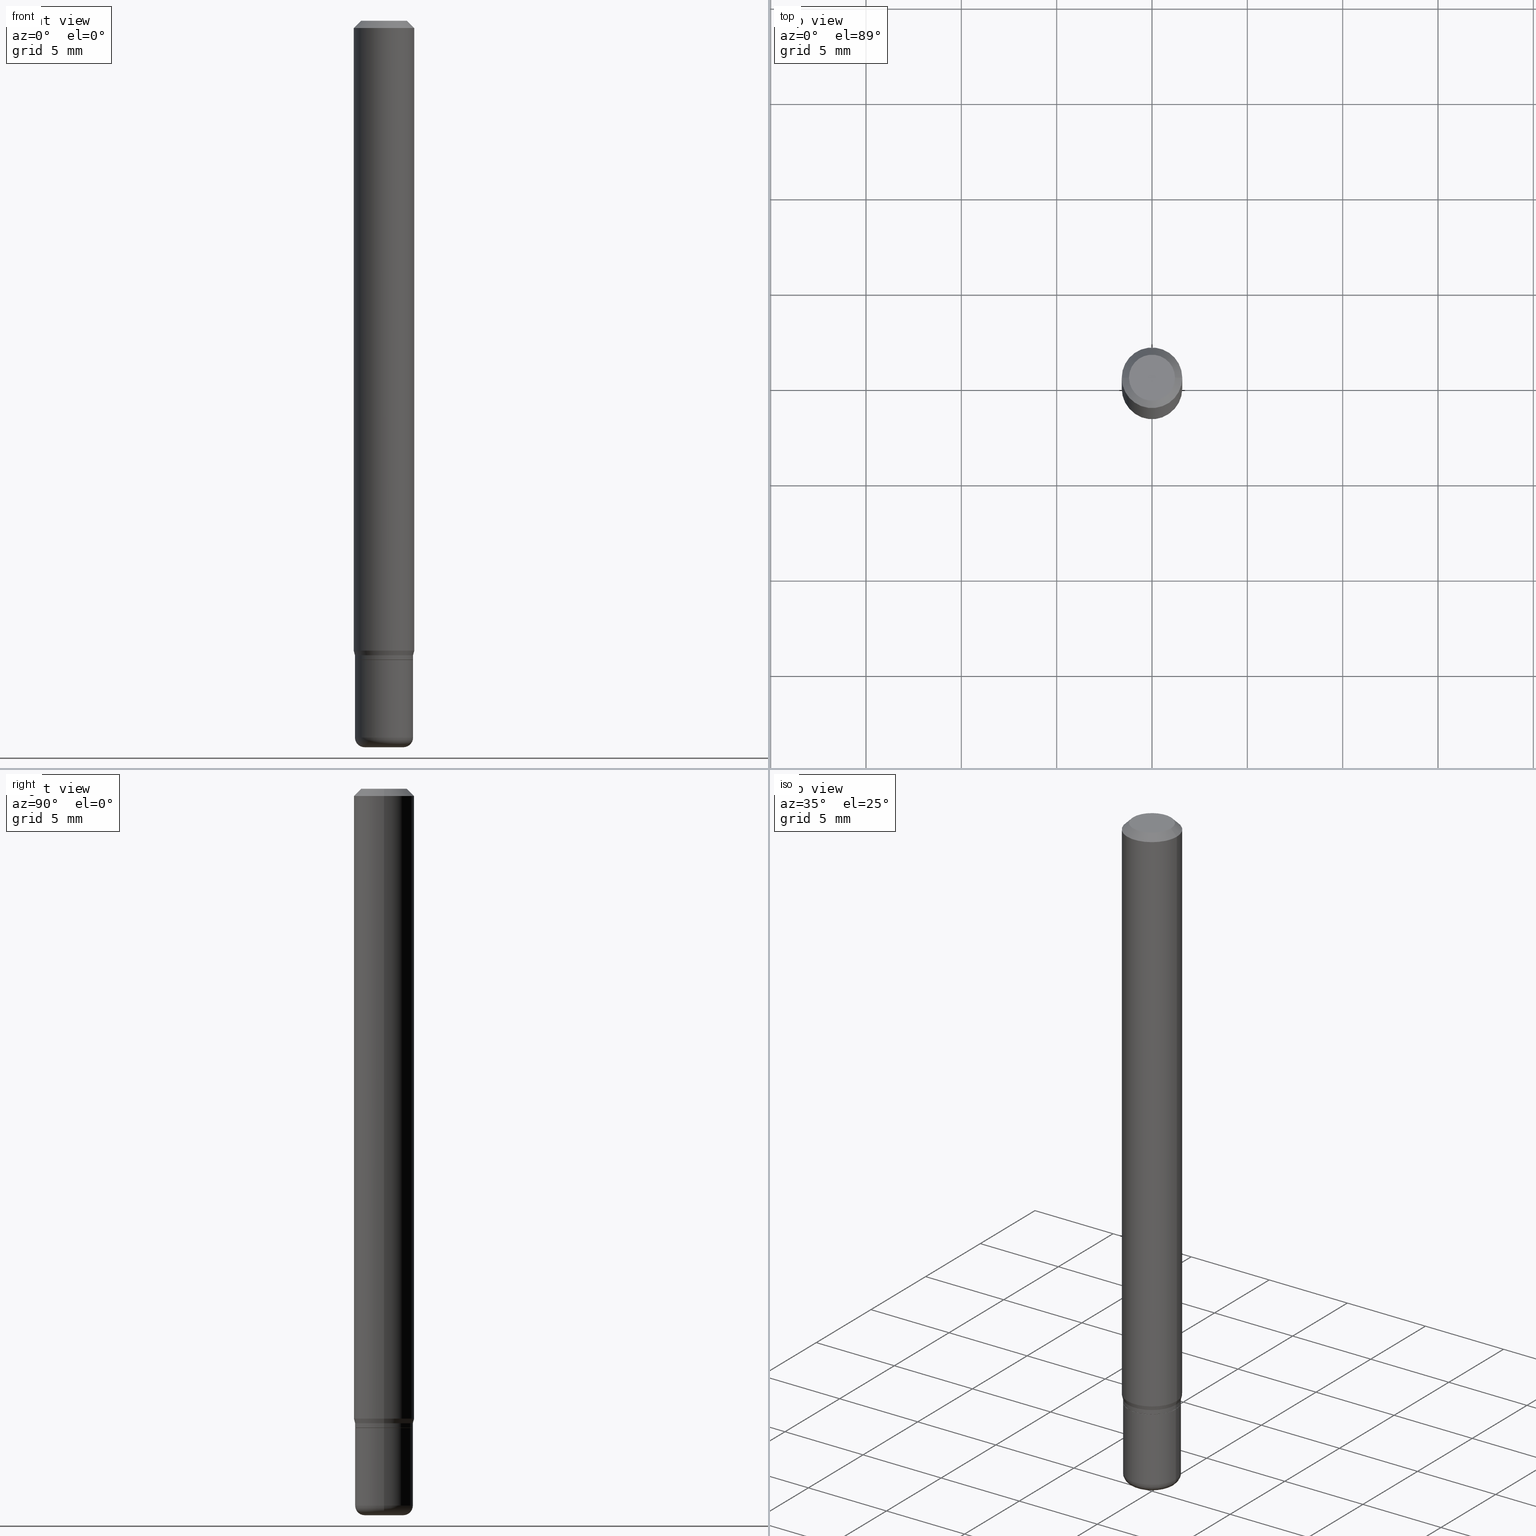
[diagram: canonical four-view strip — front | top / right | iso, engineering-drawing reading convention]
A machine part, canonical four-view strip (front | top / right | iso — engineering-drawing reading convention). The complete STEP part file that produces these views, byte-faithful:
ISO-10303-21;
HEADER;
FILE_DESCRIPTION (( 'STEP AP203' ),
    '1' );
FILE_NAME ('08637.STEP',
    '2024-02-29T20:06:25',
    ( '' ),
    ( '' ),
    'SwSTEP 2.0',
    'SolidWorks 2023',
    '' );
FILE_SCHEMA (( 'CONFIG_CONTROL_DESIGN' ));
ENDSEC;

DATA;
#1 = ORIENTED_EDGE ( 'NONE', *, *, #196, .T. ) ;
#2 = CONICAL_SURFACE ( 'NONE', #60, 0.06250000000000000000, 0.7853981633974488341 ) ;
#3 = EDGE_CURVE ( 'NONE', #418, #453, #96, .T. ) ;
#4 = AXIS2_PLACEMENT_3D ( 'NONE', #417, #324, #288 ) ;
#5 = FACE_OUTER_BOUND ( 'NONE', #258, .T. ) ;
#6 = PLANE ( 'NONE',  #35 ) ;
#7 = ORIENTED_EDGE ( 'NONE', *, *, #271, .F. ) ;
#8 = CYLINDRICAL_SURFACE ( 'NONE', #334, 0.06000000000000001860 ) ;
#9 = EDGE_LOOP ( 'NONE', ( #455, #17, #442, #510 ) ) ;
#10 = AXIS2_PLACEMENT_3D ( 'NONE', #369, #45, #328 ) ;
#11 = CARTESIAN_POINT ( 'NONE',  ( 3.316907271900976589E-16, 0.04750000000000000749, -2.925296391183627249E-17 ) ) ;
#12 = ADVANCED_FACE ( 'NONE', ( #307 ), #278, .T. ) ;
#13 = EDGE_LOOP ( 'NONE', ( #93, #44, #169, #260 ) ) ;
#14 = CARTESIAN_POINT ( 'NONE',  ( -6.680649051745406845E-45, 9.538196290434862081E-31, 2.731847993664263218E-16 ) ) ;
#15 = ORIENTED_EDGE ( 'NONE', *, *, #108, .T. ) ;
#16 = DIRECTION ( 'NONE',  ( 1.000000000000000000, -6.982962677686273810E-15, 0.000000000000000000 ) ) ;
#17 = ORIENTED_EDGE ( 'NONE', *, *, #439, .T. ) ;
#18 = VECTOR ( 'NONE', #409, 39.37007874015748854 ) ;
#19 = DIRECTION ( 'NONE',  ( -2.445468806185136877E-29, 3.491481338843145188E-15, 1.000000000000000000 ) ) ;
#20 = ORIENTED_EDGE ( 'NONE', *, *, #114, .F. ) ;
#21 = EDGE_LOOP ( 'NONE', ( #362, #333 ) ) ;
#22 = FACE_OUTER_BOUND ( 'NONE', #54, .T. ) ;
#23 = ORIENTED_EDGE ( 'NONE', *, *, #32, .T. ) ;
#24 = CARTESIAN_POINT ( 'NONE',  ( 3.203564136102529457E-29, -4.573840553884521577E-15, -1.310000000000000275 ) ) ;
#25 = EDGE_LOOP ( 'NONE', ( #178, #491, #295, #20 ) ) ;
#26 =( GEOMETRIC_REPRESENTATION_CONTEXT ( 3 ) GLOBAL_UNCERTAINTY_ASSIGNED_CONTEXT ( ( #72 ) ) GLOBAL_UNIT_ASSIGNED_CONTEXT ( ( #299, #303, #505 ) ) REPRESENTATION_CONTEXT ( 'NONE', 'WORKASPACE' ) );
#27 = DIRECTION ( 'NONE',  ( -2.445468806185136597E-29, 3.491481338843145583E-15, 1.000000000000000000 ) ) ;
#28 = ORIENTED_EDGE ( 'NONE', *, *, #232, .F. ) ;
#29 = DIRECTION ( 'NONE',  ( 1.000000000000000000, -6.982962677686258033E-15, 0.000000000000000000 ) ) ;
#30 = DIRECTION ( 'NONE',  ( -1.000000000000000000, 6.982962677686266711E-15, 0.000000000000000000 ) ) ;
#31 = EDGE_CURVE ( 'NONE', #214, #207, #337, .T. ) ;
#32 = EDGE_CURVE ( 'NONE', #414, #184, #381, .T. ) ;
#33 = APPROVAL_DATE_TIME ( #355, #118 ) ;
#34 = DIRECTION ( 'NONE',  ( 1.000000000000000000, -6.982962677686262766E-15, 0.000000000000000000 ) ) ;
#35 = AXIS2_PLACEMENT_3D ( 'NONE', #122, #351, #518 ) ;
#36 = AXIS2_PLACEMENT_3D ( 'NONE', #141, #225, #344 ) ;
#37 = DIRECTION ( 'NONE',  ( -2.445468806185136597E-29, 3.491481338843145583E-15, 1.000000000000000000 ) ) ;
#38 = COORDINATED_UNIVERSAL_TIME_OFFSET ( 5, 0, .BEHIND. ) ;
#39 = DIRECTION ( 'NONE',  ( 7.105427357601001859E-15, 1.000000000000000000, -3.491481338843145583E-15 ) ) ;
#40 = PERSON_AND_ORGANIZATION ( #204, #182 ) ;
#41 = FACE_OUTER_BOUND ( 'NONE', #408, .T. ) ;
#42 = VECTOR ( 'NONE', #257, 39.37007874015748854 ) ;
#43 = CARTESIAN_POINT ( 'NONE',  ( 3.203564136102529457E-29, -4.573840553884521577E-15, -1.310000000000000275 ) ) ;
#44 = ORIENTED_EDGE ( 'NONE', *, *, #84, .T. ) ;
#45 = DIRECTION ( 'NONE',  ( -2.445468806185136597E-29, 3.491481338843145583E-15, 1.000000000000000000 ) ) ;
#46 = EDGE_LOOP ( 'NONE', ( #218, #300, #135, #209 ) ) ;
#47 = EDGE_CURVE ( 'NONE', #301, #509, #136, .T. ) ;
#48 = EDGE_CURVE ( 'NONE', #370, #451, #411, .T. ) ;
#49 = CARTESIAN_POINT ( 'NONE',  ( 0.06000000000000002554, -4.189777606611761900E-16, 2.925706065477562807E-30 ) ) ;
#50 = ORIENTED_EDGE ( 'NONE', *, *, #195, .T. ) ;
#51 = CIRCLE ( 'NONE', #113, 0.06250000000000000000 ) ;
#52 = PRODUCT_DEFINITION_FORMATION_WITH_SPECIFIED_SOURCE ( 'ANY', '', #473, .NOT_KNOWN. ) ;
#53 = DIRECTION ( 'NONE',  ( -2.445468806185136597E-29, 3.491481338843145583E-15, 1.000000000000000000 ) ) ;
#54 = EDGE_LOOP ( 'NONE', ( #426, #133, #23, #102 ) ) ;
#55 = DIRECTION ( 'NONE',  ( 2.438088387897960049E-29, -3.491481338843145188E-15, -1.000000000000000000 ) ) ;
#56 = VERTEX_POINT ( 'NONE', #460 ) ;
#57 = EDGE_CURVE ( 'NONE', #207, #370, #500, .T. ) ;
#58 = DIRECTION ( 'NONE',  ( 1.000000000000000000, -6.982962677686273810E-15, 0.000000000000000000 ) ) ;
#59 = ORIENTED_EDGE ( 'NONE', *, *, #48, .F. ) ;
#60 = AXIS2_PLACEMENT_3D ( 'NONE', #515, #444, #318 ) ;
#61 = VECTOR ( 'NONE', #390, 39.37007874015748143 ) ;
#62 = CARTESIAN_POINT ( 'NONE',  ( 0.000000000000000000, 0.000000000000000000, 0.000000000000000000 ) ) ;
#63 = AXIS2_PLACEMENT_3D ( 'NONE', #168, #452, #332 ) ;
#64 = DIRECTION ( 'NONE',  ( 1.000000000000000000, -6.982962677686262766E-15, 0.000000000000000000 ) ) ;
#65 = PERSON_AND_ORGANIZATION ( #204, #182 ) ;
#66 = DIRECTION ( 'NONE',  ( -2.445468806185136597E-29, 3.491481338843145583E-15, 1.000000000000000000 ) ) ;
#67 = ADVANCED_FACE ( 'NONE', ( #266 ), #186, .T. ) ;
#68 = CARTESIAN_POINT ( 'NONE',  ( -0.05950000000000001815, -4.185982439495692846E-15, -1.320000000000000062 ) ) ;
#69 = CARTESIAN_POINT ( 'NONE',  ( 0.04750000000000000749, -4.035134999187568762E-16, 2.731847993664288856E-16 ) ) ;
#70 = DIRECTION ( 'NONE',  ( -2.445468806185136597E-29, 3.491481338843145583E-15, 1.000000000000000000 ) ) ;
#71 = AXIS2_PLACEMENT_3D ( 'NONE', #24, #386, #183 ) ;
#72 = UNCERTAINTY_MEASURE_WITH_UNIT (LENGTH_MEASURE( 1.000000000000000082E-05 ), #299, 'distance_accuracy_value', 'NONE');
#73 = DIRECTION ( 'NONE',  ( -2.445468806185136597E-29, 3.491481338843145583E-15, 1.000000000000000000 ) ) ;
#74 = ADVANCED_FACE ( 'NONE', ( #425 ), #268, .F. ) ;
#75 = ORIENTED_EDGE ( 'NONE', *, *, #57, .F. ) ;
#76 = DIRECTION ( 'NONE',  ( 1.000000000000000000, -6.982962677686264344E-15, 0.000000000000000000 ) ) ;
#77 = PRODUCT_DEFINITION_SHAPE ( 'NONE', 'NONE',  #305 ) ;
#78 = CALENDAR_DATE ( 2024, 29, 2 ) ;
#79 = DIRECTION ( 'NONE',  ( -2.445468806185136877E-29, 3.491481338843145188E-15, 1.000000000000000000 ) ) ;
#80 = CC_DESIGN_APPROVAL ( #213, ( #305 ) ) ;
#81 = CALENDAR_DATE ( 2024, 29, 2 ) ;
#82 = DIRECTION ( 'NONE',  ( -2.445468806185136597E-29, 3.491481338843145583E-15, 1.000000000000000000 ) ) ;
#83 = ORIENTED_EDGE ( 'NONE', *, *, #271, .T. ) ;
#84 = EDGE_CURVE ( 'NONE', #56, #131, #476, .T. ) ;
#85 = ADVANCED_FACE ( 'NONE', ( #399 ), #241, .T. ) ;
#86 = CARTESIAN_POINT ( 'NONE',  ( -0.04000000000000000083, -4.883175287183815341E-15, -1.479999999999999982 ) ) ;
#87 = APPROVAL_DATE_TIME ( #279, #213 ) ;
#88 = LINE ( 'NONE', #280, #302 ) ;
#89 = AXIS2_PLACEMENT_3D ( 'NONE', #11, #55, #415 ) ;
#90 = CARTESIAN_POINT ( 'NONE',  ( -0.04750000000000000749, 3.578768372314221353E-16, 2.731847993664239060E-16 ) ) ;
#91 = EDGE_CURVE ( 'NONE', #340, #289, #511, .T. ) ;
#92 = DIRECTION ( 'NONE',  ( 1.000000000000000000, -6.982962677686266711E-15, 4.852736867747365086E-29 ) ) ;
#93 = ORIENTED_EDGE ( 'NONE', *, *, #195, .F. ) ;
#94 = CARTESIAN_POINT ( 'NONE',  ( 0.06000000000000004635, -4.992818314545698211E-15, -1.310000000000000275 ) ) ;
#95 = ORIENTED_EDGE ( 'NONE', *, *, #341, .F. ) ;
#96 = CIRCLE ( 'NONE', #123, 0.04750000000000000749 ) ;
#97 = AXIS2_PLACEMENT_3D ( 'NONE', #62, #27, #306 ) ;
#98 = DIRECTION ( 'NONE',  ( 1.000000000000000000, -6.982962677686266711E-15, 0.000000000000000000 ) ) ;
#99 = ADVANCED_FACE ( 'NONE', ( #199 ), #6, .F. ) ;
#100 = EDGE_LOOP ( 'NONE', ( #142, #433, #28, #95 ) ) ;
#101 = CARTESIAN_POINT ( 'NONE',  ( 3.228018824164380442E-29, -4.608755367272952437E-15, -1.320000000000000062 ) ) ;
#102 = ORIENTED_EDGE ( 'NONE', *, *, #480, .F. ) ;
#103 = ORIENTED_EDGE ( 'NONE', *, *, #428, .F. ) ;
#104 = AXIS2_PLACEMENT_3D ( 'NONE', #275, #246, #76 ) ;
#105 = AXIS2_PLACEMENT_3D ( 'NONE', #265, #419, #377 ) ;
#106 = CARTESIAN_POINT ( 'NONE',  ( 0.04000000000000000777, -5.516540515372169003E-15, -1.500000000000000222 ) ) ;
#107 = DIRECTION ( 'NONE',  ( -2.445468806185136877E-29, 3.491481338843145188E-15, 1.000000000000000000 ) ) ;
#108 = EDGE_CURVE ( 'NONE', #289, #364, #357, .T. ) ;
#109 = ORIENTED_EDGE ( 'NONE', *, *, #170, .T. ) ;
#110 = APPROVAL ( #198, 'UNSPECIFIED' ) ;
#111 = DIRECTION ( 'NONE',  ( 1.000000000000000000, -6.982962677686266711E-15, 0.000000000000000000 ) ) ;
#112 = FACE_OUTER_BOUND ( 'NONE', #9, .T. ) ;
#113 = AXIS2_PLACEMENT_3D ( 'NONE', #454, #366, #483 ) ;
#114 = EDGE_CURVE ( 'NONE', #506, #364, #219, .T. ) ;
#115 = ORIENTED_EDGE ( 'NONE', *, *, #248, .F. ) ;
#116 = CIRCLE ( 'NONE', #63, 0.05999999999999999778 ) ;
#117 = DIRECTION ( 'NONE',  ( -2.445468806185136877E-29, 3.491481338843145188E-15, 1.000000000000000000 ) ) ;
#118 = APPROVAL ( #478, 'UNSPECIFIED' ) ;
#119 = PERSON_AND_ORGANIZATION_ROLE ( 'creator' ) ;
#120 = FACE_OUTER_BOUND ( 'NONE', #244, .T. ) ;
#121 = DESIGN_CONTEXT ( 'detailed design', #479, 'design' ) ;
#122 = CARTESIAN_POINT ( 'NONE',  ( 3.582686580359766038E-29, -5.359686688179453325E-15, -1.500000000000000222 ) ) ;
#123 = AXIS2_PLACEMENT_3D ( 'NONE', #149, #70, #345 ) ;
#124 = AXIS2_PLACEMENT_3D ( 'NONE', #270, #73, #335 ) ;
#125 = CARTESIAN_POINT ( 'NONE',  ( 0.06250000000000000000, -4.811533449433669144E-16, -0.01499999999999970281 ) ) ;
#126 = DIRECTION ( 'NONE',  ( -2.438088387897960049E-29, 3.491481338843145188E-15, 1.000000000000000000 ) ) ;
#127 = DIRECTION ( 'NONE',  ( -2.445468806185136597E-29, 3.491481338843145583E-15, 1.000000000000000000 ) ) ;
#128 = ADVANCED_FACE ( 'NONE', ( #120 ), #435, .F. ) ;
#129 = VECTOR ( 'NONE', #215, 39.37007874015748143 ) ;
#130 = AXIS2_PLACEMENT_3D ( 'NONE', #175, #287, #447 ) ;
#131 = VERTEX_POINT ( 'NONE', #321 ) ;
#132 = PLANE ( 'NONE',  #89 ) ;
#133 = ORIENTED_EDGE ( 'NONE', *, *, #326, .T. ) ;
#134 = LINE ( 'NONE', #94, #18 ) ;
#135 = ORIENTED_EDGE ( 'NONE', *, *, #320, .F. ) ;
#136 = CIRCLE ( 'NONE', #238, 0.06250000000000000000 ) ;
#137 = AXIS2_PLACEMENT_3D ( 'NONE', #338, #501, #508 ) ;
#138 = ADVANCED_FACE ( 'NONE', ( #41 ), #2, .T. ) ;
#139 = FACE_OUTER_BOUND ( 'NONE', #46, .T. ) ;
#140 = VERTEX_POINT ( 'NONE', #205 ) ;
#141 = CARTESIAN_POINT ( 'NONE',  ( 3.228018824164380442E-29, -4.608755367272952437E-15, -1.320000000000000062 ) ) ;
#142 = ORIENTED_EDGE ( 'NONE', *, *, #320, .T. ) ;
#143 = CARTESIAN_POINT ( 'NONE',  ( 3.180747601520010727E-29, -4.541264589508919020E-15, -1.300669872981078168 ) ) ;
#144 = ADVANCED_FACE ( 'NONE', ( #5 ), #484, .T. ) ;
#145 = AXIS2_PLACEMENT_3D ( 'NONE', #43, #472, #236 ) ;
#146 = CC_DESIGN_SECURITY_CLASSIFICATION ( #494, ( #52 ) ) ;
#147 = DIRECTION ( 'NONE',  ( 1.000000000000000000, -6.982962677686262766E-15, 0.000000000000000000 ) ) ;
#148 = CYLINDRICAL_SURFACE ( 'NONE', #97, 0.06250000000000000000 ) ;
#149 = CARTESIAN_POINT ( 'NONE',  ( -6.680649051745406845E-45, 9.538196290434862081E-31, 2.731847993664263218E-16 ) ) ;
#150 = CARTESIAN_POINT ( 'NONE',  ( 0.000000000000000000, 0.000000000000000000, 0.000000000000000000 ) ) ;
#151 = TOROIDAL_SURFACE ( 'NONE', #10, 0.04000000000000000083, 0.02000000000000003511 ) ;
#152 = ORIENTED_EDGE ( 'NONE', *, *, #480, .T. ) ;
#153 = PERSON_AND_ORGANIZATION ( #204, #182 ) ;
#154 = FACE_OUTER_BOUND ( 'NONE', #304, .T. ) ;
#155 = CARTESIAN_POINT ( 'NONE',  ( 0.000000000000000000, 0.000000000000000000, 0.000000000000000000 ) ) ;
#156 = ADVANCED_FACE ( 'NONE', ( #282 ), #313, .T. ) ;
#157 = CARTESIAN_POINT ( 'NONE',  ( 0.000000000000000000, 0.000000000000000000, 0.000000000000000000 ) ) ;
#158 = AXIS2_PLACEMENT_3D ( 'NONE', #429, #234, #30 ) ;
#159 = APPROVAL_PERSON_ORGANIZATION ( #194, #118, #239 ) ;
#160 = DIRECTION ( 'NONE',  ( -1.000000000000000000, 7.105427357601009747E-15, 0.000000000000000000 ) ) ;
#161 = DIRECTION ( 'NONE',  ( -6.982962677686266711E-15, -1.000000000000000000, 3.491481338843145583E-15 ) ) ;
#162 = CC_DESIGN_PERSON_AND_ORGANIZATION_ASSIGNMENT ( #40, #316, ( #52 ) ) ;
#163 = DIRECTION ( 'NONE',  ( -2.445468806185136877E-29, 3.491481338843145188E-15, 1.000000000000000000 ) ) ;
#164 = ORIENTED_EDGE ( 'NONE', *, *, #232, .T. ) ;
#165 = VECTOR ( 'NONE', #19, 39.37007874015748143 ) ;
#166 = CARTESIAN_POINT ( 'NONE',  ( 0.06250000000000000000, -4.888073874380378612E-16, -0.01499999999999970281 ) ) ;
#167 = EDGE_LOOP ( 'NONE', ( #188, #109, #383, #416 ) ) ;
#168 = CARTESIAN_POINT ( 'NONE',  ( 3.228018824164380442E-29, -4.608755367272952437E-15, -1.320000000000000062 ) ) ;
#169 = ORIENTED_EDGE ( 'NONE', *, *, #398, .T. ) ;
#170 = EDGE_CURVE ( 'NONE', #453, #301, #477, .T. ) ;
#171 = CARTESIAN_POINT ( 'NONE',  ( 3.228018824164380442E-29, -4.608755367272952437E-15, -1.320000000000000062 ) ) ;
#172 = ORIENTED_EDGE ( 'NONE', *, *, #423, .T. ) ;
#173 = AXIS2_PLACEMENT_3D ( 'NONE', #206, #487, #98 ) ;
#174 = VECTOR ( 'NONE', #163, 39.37007874015748143 ) ;
#175 = CARTESIAN_POINT ( 'NONE',  ( 3.228018824164380442E-29, -4.608755367272952437E-15, -1.320000000000000062 ) ) ;
#176 = EDGE_LOOP ( 'NONE', ( #387, #495 ) ) ;
#177 = CARTESIAN_POINT ( 'NONE',  ( 3.668203209277704895E-29, -5.237222008264718177E-15, -1.500000000000000222 ) ) ;
#178 = ORIENTED_EDGE ( 'NONE', *, *, #346, .T. ) ;
#179 = DIRECTION ( 'NONE',  ( -2.445468806185136597E-29, 3.491481338843145583E-15, 1.000000000000000000 ) ) ;
#180 = EDGE_LOOP ( 'NONE', ( #457, #15, #293, #103 ) ) ;
#181 = AXIS2_PLACEMENT_3D ( 'NONE', #243, #361, #395 ) ;
#182 = ORGANIZATION ( 'UNSPECIFIED', 'UNSPECIFIED', '' ) ;
#183 = DIRECTION ( 'NONE',  ( 1.000000000000000000, -6.982962677686262766E-15, 0.000000000000000000 ) ) ;
#184 = VERTEX_POINT ( 'NONE', #445 ) ;
#185 =( LENGTH_UNIT ( ) NAMED_UNIT ( * ) SI_UNIT ( $, .METRE. ) );
#186 = CYLINDRICAL_SURFACE ( 'NONE', #438, 0.06000000000000001860 ) ;
#187 = CC_DESIGN_PERSON_AND_ORGANIZATION_ASSIGNMENT ( #471, #443, ( #52 ) ) ;
#188 = ORIENTED_EDGE ( 'NONE', *, *, #379, .F. ) ;
#189 = CLOSED_SHELL ( 'NONE', ( #291, #67, #74, #339, #497, #99 ) ) ;
#190 = CALENDAR_DATE ( 2024, 29, 2 ) ;
#191 = DIMENSIONAL_EXPONENTS ( 1.000000000000000000, 0.000000000000000000, 0.000000000000000000, 0.000000000000000000, 0.000000000000000000, 0.000000000000000000, 0.000000000000000000 ) ;
#192 = AXIS2_PLACEMENT_3D ( 'NONE', #229, #179, #261 ) ;
#193 = DIRECTION ( 'NONE',  ( 0.7071067811865479058, -7.319954787623257623E-15, -0.7071067811865471286 ) ) ;
#194 = PERSON_AND_ORGANIZATION ( #204, #182 ) ;
#195 = EDGE_CURVE ( 'NONE', #56, #509, #88, .T. ) ;
#196 = EDGE_CURVE ( 'NONE', #364, #289, #502, .T. ) ;
#197 = CYLINDRICAL_SURFACE ( 'NONE', #492, 0.06250000000000000000 ) ;
#198 = APPROVAL_STATUS ( 'not_yet_approved' ) ;
#199 = FACE_OUTER_BOUND ( 'NONE', #21, .T. ) ;
#200 = PERSON_AND_ORGANIZATION ( #204, #182 ) ;
#201 = DIRECTION ( 'NONE',  ( -2.445468806185136597E-29, 3.491481338843145583E-15, 1.000000000000000000 ) ) ;
#202 = AXIS2_PLACEMENT_3D ( 'NONE', #360, #201, #34 ) ;
#203 = LOCAL_TIME ( 15, 6, 25.00000000000000000, #400 ) ;
#204 = PERSON ( 'UNSPECIFIED', 'UNSPECIFIED', 'UNSPECIFIED', ('UNSPECIFIED'), ('UNSPECIFIED'), ('UNSPECIFIED') ) ;
#205 = CARTESIAN_POINT ( 'NONE',  ( -0.05999999999999999778, -4.461748232924343562E-15, -1.320000000000000062 ) ) ;
#206 = CARTESIAN_POINT ( 'NONE',  ( 3.668203209277632395E-31, -5.237222008264614861E-17, -0.01499999999999970281 ) ) ;
#207 = VERTEX_POINT ( 'NONE', #315 ) ;
#208 = DIRECTION ( 'NONE',  ( -2.445468806185136597E-29, 3.491481338843145583E-15, 1.000000000000000000 ) ) ;
#209 = ORIENTED_EDGE ( 'NONE', *, *, #32, .F. ) ;
#210 = VECTOR ( 'NONE', #193, 39.37007874015748143 ) ;
#211 = CIRCLE ( 'NONE', #137, 0.06000000000000001860 ) ;
#212 = LINE ( 'NONE', #49, #174 ) ;
#213 = APPROVAL ( #242, 'UNSPECIFIED' ) ;
#214 = VERTEX_POINT ( 'NONE', #277 ) ;
#215 = DIRECTION ( 'NONE',  ( -0.7071067811865479058, 2.468850131082261005E-15, -0.7071067811865471286 ) ) ;
#216 = ORIENTED_EDGE ( 'NONE', *, *, #253, .F. ) ;
#217 = LINE ( 'NONE', #373, #165 ) ;
#218 = ORIENTED_EDGE ( 'NONE', *, *, #406, .T. ) ;
#219 = CIRCLE ( 'NONE', #467, 0.02000000000000003511 ) ;
#220 = CIRCLE ( 'NONE', #4, 0.04000000000000000777 ) ;
#221 = CARTESIAN_POINT ( 'NONE',  ( -0.06250000000000000000, -1.852729194945719842E-15, -0.01499999999999970281 ) ) ;
#222 = CARTESIAN_POINT ( 'NONE',  ( -0.06000000000000002554, 4.263256414560602930E-16, -2.951361054152944464E-30 ) ) ;
#223 = PERSON_AND_ORGANIZATION_ROLE ( 'design_owner' ) ;
#224 = EDGE_LOOP ( 'NONE', ( #1, #172, #486, #449 ) ) ;
#225 = DIRECTION ( 'NONE',  ( -2.445468806185136597E-29, 3.491481338843145583E-15, 1.000000000000000000 ) ) ;
#226 = ORIENTED_EDGE ( 'NONE', *, *, #406, .F. ) ;
#227 = VECTOR ( 'NONE', #79, 39.37007874015748143 ) ;
#228 = LOCAL_TIME ( 15, 6, 25.00000000000000000, #235 ) ;
#229 = CARTESIAN_POINT ( 'NONE',  ( 3.228018824164380442E-29, -4.608755367272952437E-15, -1.320000000000000062 ) ) ;
#230 = ADVANCED_FACE ( 'NONE', ( #154 ), #197, .T. ) ;
#231 = DIRECTION ( 'NONE',  ( -2.445468806185136597E-29, 3.491481338843145583E-15, 1.000000000000000000 ) ) ;
#232 = EDGE_CURVE ( 'NONE', #451, #370, #247, .T. ) ;
#233 = ADVANCED_BREP_SHAPE_REPRESENTATION ( '08637', ( #354, #352, #105 ), #26 ) ;
#234 = DIRECTION ( 'NONE',  ( 2.445468806185136597E-29, -3.491481338843145583E-15, -1.000000000000000000 ) ) ;
#235 = COORDINATED_UNIVERSAL_TIME_OFFSET ( 5, 0, .BEHIND. ) ;
#236 = DIRECTION ( 'NONE',  ( 1.000000000000000000, -6.982962677686262766E-15, 0.000000000000000000 ) ) ;
#237 = EDGE_CURVE ( 'NONE', #364, #470, #392, .T. ) ;
#238 = AXIS2_PLACEMENT_3D ( 'NONE', #262, #231, #111 ) ;
#239 = APPROVAL_ROLE ( '' ) ;
#240 = AXIS2_PLACEMENT_3D ( 'NONE', #177, #382, #29 ) ;
#241 = CYLINDRICAL_SURFACE ( 'NONE', #286, 0.06000000000000002554 ) ;
#242 = APPROVAL_STATUS ( 'not_yet_approved' ) ;
#243 = CARTESIAN_POINT ( 'NONE',  ( 3.619293833154002365E-29, -5.167392381487854879E-15, -1.479999999999999982 ) ) ;
#244 = EDGE_LOOP ( 'NONE', ( #226, #372 ) ) ;
#245 = CARTESIAN_POINT ( 'NONE',  ( 0.04000000000000000083, -5.446710888595305705E-15, -1.479999999999999982 ) ) ;
#246 = DIRECTION ( 'NONE',  ( -2.445468806185136597E-29, 3.491481338843145583E-15, 1.000000000000000000 ) ) ;
#247 = CIRCLE ( 'NONE', #145, 0.06000000000000004635 ) ;
#248 = EDGE_CURVE ( 'NONE', #370, #56, #353, .T. ) ;
#249 = CIRCLE ( 'NONE', #192, 0.05999999999999999778 ) ;
#250 = LINE ( 'NONE', #308, #461 ) ;
#251 = FACE_OUTER_BOUND ( 'NONE', #180, .T. ) ;
#252 = ORIENTED_EDGE ( 'NONE', *, *, #84, .F. ) ;
#253 = EDGE_CURVE ( 'NONE', #131, #56, #51, .T. ) ;
#254 = CARTESIAN_POINT ( 'NONE',  ( 0.000000000000000000, 0.000000000000000000, 0.000000000000000000 ) ) ;
#255 = ORIENTED_EDGE ( 'NONE', *, *, #341, .T. ) ;
#256 = AXIS2_PLACEMENT_3D ( 'NONE', #421, #272, #64 ) ;
#257 = DIRECTION ( 'NONE',  ( -0.2588190451025189631, 5.211531920934535265E-15, 0.9659258262890687563 ) ) ;
#258 = EDGE_LOOP ( 'NONE', ( #115, #374, #83, #252 ) ) ;
#259 = DIRECTION ( 'NONE',  ( -2.445468806185136597E-29, 3.491481338843145583E-15, 1.000000000000000000 ) ) ;
#260 = ORIENTED_EDGE ( 'NONE', *, *, #269, .F. ) ;
#261 = DIRECTION ( 'NONE',  ( 1.000000000000000000, -6.982962677686268288E-15, 0.000000000000000000 ) ) ;
#262 = CARTESIAN_POINT ( 'NONE',  ( 3.668203209277632395E-31, -5.237222008264614861E-17, -0.01499999999999970281 ) ) ;
#263 = PRODUCT_RELATED_PRODUCT_CATEGORY ( 'detail', '', ( #473 ) ) ;
#264 = CIRCLE ( 'NONE', #446, 0.05950000000000001815 ) ;
#265 = CARTESIAN_POINT ( 'NONE',  ( 0.000000000000000000, 0.000000000000000000, 0.000000000000000000 ) ) ;
#266 = FACE_OUTER_BOUND ( 'NONE', #224, .T. ) ;
#267 = APPLICATION_PROTOCOL_DEFINITION ( 'international standard', 'config_control_design', 1994, #479 ) ;
#268 = PLANE ( 'NONE',  #384 ) ;
#269 = EDGE_CURVE ( 'NONE', #509, #301, #402, .T. ) ;
#270 = CARTESIAN_POINT ( 'NONE',  ( 3.619293833154002365E-29, -5.167392381487854879E-15, -1.479999999999999982 ) ) ;
#271 = EDGE_CURVE ( 'NONE', #451, #131, #134, .T. ) ;
#272 = DIRECTION ( 'NONE',  ( -2.445468806185136597E-29, 3.491481338843145583E-15, 1.000000000000000000 ) ) ;
#273 = AXIS2_PLACEMENT_3D ( 'NONE', #285, #126, #322 ) ;
#274 = DIRECTION ( 'NONE',  ( 2.438088387897960049E-29, -3.491481338843145188E-15, -1.000000000000000000 ) ) ;
#275 = CARTESIAN_POINT ( 'NONE',  ( 3.619293833154002365E-29, -5.167392381487854879E-15, -1.479999999999999982 ) ) ;
#276 = PERSON_AND_ORGANIZATION ( #204, #182 ) ;
#277 = CARTESIAN_POINT ( 'NONE',  ( -0.05950000000000001815, -4.183333212321581645E-15, -1.320000000000000062 ) ) ;
#278 = CONICAL_SURFACE ( 'NONE', #158, 0.06250000000000000000, 0.7853981633974488341 ) ;
#279 = DATE_AND_TIME ( #190, #203 ) ;
#280 = CARTESIAN_POINT ( 'NONE',  ( -0.06250000000000000000, 4.440892098500626162E-16, -3.074334431409316114E-30 ) ) ;
#281 = SHAPE_DEFINITION_REPRESENTATION ( #77, #233 ) ;
#282 = FACE_OUTER_BOUND ( 'NONE', #100, .T. ) ;
#283 = CALENDAR_DATE ( 2024, 29, 2 ) ;
#284 = CC_DESIGN_DATE_AND_TIME_ASSIGNMENT ( #358, #513, ( #305 ) ) ;
#285 = CARTESIAN_POINT ( 'NONE',  ( 3.228018824164380442E-29, -4.608755367272952437E-15, -1.320000000000000062 ) ) ;
#286 = AXIS2_PLACEMENT_3D ( 'NONE', #157, #356, #441 ) ;
#287 = DIRECTION ( 'NONE',  ( -2.445468806185136597E-29, 3.491481338843145583E-15, 1.000000000000000000 ) ) ;
#288 = DIRECTION ( 'NONE',  ( 1.000000000000000000, -6.982962677686258033E-15, 0.000000000000000000 ) ) ;
#289 = VERTEX_POINT ( 'NONE', #330 ) ;
#290 = ADVANCED_FACE ( 'NONE', ( #363 ), #132, .F. ) ;
#291 = ADVANCED_FACE ( 'NONE', ( #493 ), #151, .T. ) ;
#292 = LINE ( 'NONE', #490, #129 ) ;
#293 = ORIENTED_EDGE ( 'NONE', *, *, #237, .T. ) ;
#294 = DIRECTION ( 'NONE',  ( 1.000000000000000000, -6.982962677686266711E-15, 4.876176775795935793E-29 ) ) ;
#295 = ORIENTED_EDGE ( 'NONE', *, *, #196, .F. ) ;
#296 = CONICAL_SURFACE ( 'NONE', #36, 0.05950000000000001815, 0.7853981633975507526 ) ;
#297 = CARTESIAN_POINT ( 'NONE',  ( -0.04000000000000000777, -4.847035826996236908E-15, -1.500000000000000222 ) ) ;
#298 = ORIENTED_EDGE ( 'NONE', *, *, #379, .T. ) ;
#299 =( CONVERSION_BASED_UNIT ( 'INCH', #496 ) LENGTH_UNIT ( ) NAMED_UNIT ( #191 ) );
#300 = ORIENTED_EDGE ( 'NONE', *, *, #31, .T. ) ;
#301 = VERTEX_POINT ( 'NONE', #166 ) ;
#302 = VECTOR ( 'NONE', #117, 39.37007874015748143 ) ;
#303 =( NAMED_UNIT ( * ) PLANE_ANGLE_UNIT ( ) SI_UNIT ( $, .RADIAN. ) );
#304 = EDGE_LOOP ( 'NONE', ( #327, #50, #331, #410 ) ) ;
#305 = PRODUCT_DEFINITION ( 'UNKNOWN', '', #52, #121 ) ;
#306 = DIRECTION ( 'NONE',  ( 1.000000000000000000, -6.982962677686266711E-15, 4.876176775795935793E-29 ) ) ;
#307 = FACE_OUTER_BOUND ( 'NONE', #167, .T. ) ;
#308 = CARTESIAN_POINT ( 'NONE',  ( -0.06000000000000001860, 4.263256414560602437E-16, -2.951361054152944114E-30 ) ) ;
#309 = DIRECTION ( 'NONE',  ( -2.445468806185136597E-29, 3.491481338843145583E-15, 1.000000000000000000 ) ) ;
#310 = CIRCLE ( 'NONE', #130, 0.05950000000000001815 ) ;
#311 = CARTESIAN_POINT ( 'NONE',  ( 0.05950000000000001815, -5.024241646595286064E-15, -1.320000000000000062 ) ) ;
#312 = COORDINATED_UNIVERSAL_TIME_OFFSET ( 5, 0, .BEHIND. ) ;
#313 = CYLINDRICAL_SURFACE ( 'NONE', #323, 0.06000000000000002554 ) ;
#314 = APPROVAL_ROLE ( '' ) ;
#315 = CARTESIAN_POINT ( 'NONE',  ( -0.06000000000000001860, -4.180683985147471232E-15, -1.319500000000000117 ) ) ;
#316 = PERSON_AND_ORGANIZATION_ROLE ( 'creator' ) ;
#317 = LOCAL_TIME ( 15, 6, 25.00000000000000000, #312 ) ;
#318 = DIRECTION ( 'NONE',  ( -1.000000000000000000, 6.982962677686266711E-15, 0.000000000000000000 ) ) ;
#319 = EDGE_CURVE ( 'NONE', #418, #509, #292, .T. ) ;
#320 = EDGE_CURVE ( 'NONE', #184, #207, #376, .T. ) ;
#321 = CARTESIAN_POINT ( 'NONE',  ( 0.06250000000000000000, -4.977699756864310689E-15, -1.300669872981078168 ) ) ;
#322 = DIRECTION ( 'NONE',  ( 1.000000000000000000, -6.982962677686265922E-15, 4.876176775795935793E-29 ) ) ;
#323 = AXIS2_PLACEMENT_3D ( 'NONE', #155, #37, #481 ) ;
#324 = DIRECTION ( 'NONE',  ( -2.445468806185136597E-29, 3.491481338843145583E-15, 1.000000000000000000 ) ) ;
#325 = LOCAL_TIME ( 15, 6, 25.00000000000000000, #38 ) ;
#326 = EDGE_CURVE ( 'NONE', #214, #414, #264, .T. ) ;
#327 = ORIENTED_EDGE ( 'NONE', *, *, #253, .T. ) ;
#328 = DIRECTION ( 'NONE',  ( 1.000000000000000000, -6.982962677686264344E-15, 4.883557194083111780E-29 ) ) ;
#329 = ORIENTED_EDGE ( 'NONE', *, *, #3, .T. ) ;
#330 = CARTESIAN_POINT ( 'NONE',  ( -0.06000000000000003247, -4.461748232924343562E-15, -1.479999999999999982 ) ) ;
#331 = ORIENTED_EDGE ( 'NONE', *, *, #47, .F. ) ;
#332 = DIRECTION ( 'NONE',  ( 1.000000000000000000, -6.982962677686268288E-15, 0.000000000000000000 ) ) ;
#333 = ORIENTED_EDGE ( 'NONE', *, *, #439, .F. ) ;
#334 = AXIS2_PLACEMENT_3D ( 'NONE', #254, #53, #294 ) ;
#335 = DIRECTION ( 'NONE',  ( 1.000000000000000000, -6.982962677686264344E-15, 4.883557194083111780E-29 ) ) ;
#336 = ORIENTED_EDGE ( 'NONE', *, *, #319, .T. ) ;
#337 = LINE ( 'NONE', #68, #375 ) ;
#338 = CARTESIAN_POINT ( 'NONE',  ( 3.226796089761288762E-29, -4.607009626603530934E-15, -1.319500000000000117 ) ) ;
#339 = ADVANCED_FACE ( 'NONE', ( #251 ), #8, .T. ) ;
#340 = VERTEX_POINT ( 'NONE', #297 ) ;
#341 = EDGE_CURVE ( 'NONE', #184, #451, #212, .T. ) ;
#342 = CONICAL_SURFACE ( 'NONE', #359, 0.05950000000000001815, 0.7853981633975507526 ) ;
#343 = ORIENTED_EDGE ( 'NONE', *, *, #248, .T. ) ;
#344 = DIRECTION ( 'NONE',  ( 1.000000000000000000, -6.982962677686273810E-15, 0.000000000000000000 ) ) ;
#345 = DIRECTION ( 'NONE',  ( 1.000000000000000000, -6.982962677686266711E-15, 4.852736867747365086E-29 ) ) ;
#346 = EDGE_CURVE ( 'NONE', #506, #340, #220, .T. ) ;
#347 = ORIENTED_EDGE ( 'NONE', *, *, #3, .F. ) ;
#348 = CC_DESIGN_APPROVAL ( #118, ( #52 ) ) ;
#349 = DATE_AND_TIME ( #391, #325 ) ;
#350 = CC_DESIGN_DATE_AND_TIME_ASSIGNMENT ( #349, #469, ( #494 ) ) ;
#351 = DIRECTION ( 'NONE',  ( -2.438088387897960049E-29, 3.491481338843145188E-15, 1.000000000000000000 ) ) ;
#352 = MANIFOLD_SOLID_BREP ( 'Body-Move/Copy2[2]', #459 ) ;
#353 = LINE ( 'NONE', #516, #42 ) ;
#354 = MANIFOLD_SOLID_BREP ( 'Body-Move/Copy2[1]', #189 ) ;
#355 = DATE_AND_TIME ( #81, #317 ) ;
#356 = DIRECTION ( 'NONE',  ( -2.445468806185136597E-29, 3.491481338843145583E-15, 1.000000000000000000 ) ) ;
#357 = CIRCLE ( 'NONE', #181, 0.06000000000000003247 ) ;
#358 = DATE_AND_TIME ( #283, #228 ) ;
#359 = AXIS2_PLACEMENT_3D ( 'NONE', #101, #259, #58 ) ;
#360 = CARTESIAN_POINT ( 'NONE',  ( 3.203564136102529457E-29, -4.573840553884521577E-15, -1.310000000000000275 ) ) ;
#361 = DIRECTION ( 'NONE',  ( -2.445468806185136597E-29, 3.491481338843145583E-15, 1.000000000000000000 ) ) ;
#362 = ORIENTED_EDGE ( 'NONE', *, *, #346, .F. ) ;
#363 = FACE_OUTER_BOUND ( 'NONE', #405, .T. ) ;
#364 = VERTEX_POINT ( 'NONE', #448 ) ;
#365 = AXIS2_PLACEMENT_3D ( 'NONE', #143, #66, #147 ) ;
#366 = DIRECTION ( 'NONE',  ( -2.445468806185136597E-29, 3.491481338843145583E-15, 1.000000000000000000 ) ) ;
#367 = CONICAL_SURFACE ( 'NONE', #71, 0.06000000000000004635, 0.2617993877991475760 ) ;
#368 = ORIENTED_EDGE ( 'NONE', *, *, #269, .T. ) ;
#369 = CARTESIAN_POINT ( 'NONE',  ( 3.619293833154002365E-29, -5.167392381487854879E-15, -1.479999999999999982 ) ) ;
#370 = VERTEX_POINT ( 'NONE', #412 ) ;
#371 = DIRECTION ( 'NONE',  ( -2.445468806185136597E-29, 3.491481338843145583E-15, 1.000000000000000000 ) ) ;
#372 = ORIENTED_EDGE ( 'NONE', *, *, #326, .F. ) ;
#373 = CARTESIAN_POINT ( 'NONE',  ( 0.06250000000000000000, -4.364351673553916694E-16, 3.047610484872459871E-30 ) ) ;
#374 = ORIENTED_EDGE ( 'NONE', *, *, #48, .T. ) ;
#375 = VECTOR ( 'NONE', #465, 39.37007874015748143 ) ;
#376 = CIRCLE ( 'NONE', #403, 0.06000000000000001860 ) ;
#377 = DIRECTION ( 'NONE',  ( 1.000000000000000000, 0.000000000000000000, 0.000000000000000000 ) ) ;
#378 = DIRECTION ( 'NONE',  ( -1.000000000000000000, 6.982962677686265922E-15, -4.876176775795935793E-29 ) ) ;
#379 = EDGE_CURVE ( 'NONE', #453, #418, #468, .T. ) ;
#380 = EDGE_CURVE ( 'NONE', #470, #140, #116, .T. ) ;
#381 = LINE ( 'NONE', #311, #61 ) ;
#382 = DIRECTION ( 'NONE',  ( -2.445468806185136597E-29, 3.491481338843145583E-15, 1.000000000000000000 ) ) ;
#383 = ORIENTED_EDGE ( 'NONE', *, *, #47, .T. ) ;
#384 = AXIS2_PLACEMENT_3D ( 'NONE', #503, #274, #378 ) ;
#385 = APPROVAL_PERSON_ORGANIZATION ( #276, #110, #314 ) ;
#386 = DIRECTION ( 'NONE',  ( -2.445468806185136597E-29, 3.491481338843145583E-15, 1.000000000000000000 ) ) ;
#387 = ORIENTED_EDGE ( 'NONE', *, *, #380, .T. ) ;
#388 = CC_DESIGN_PERSON_AND_ORGANIZATION_ASSIGNMENT ( #65, #223, ( #473 ) ) ;
#389 = DIRECTION ( 'NONE',  ( -2.445468806185136877E-29, 3.491481338843145188E-15, 1.000000000000000000 ) ) ;
#390 = DIRECTION ( 'NONE',  ( 0.7071067811866199593, -2.468850131083015945E-15, 0.7071067811864750752 ) ) ;
#391 = CALENDAR_DATE ( 2024, 29, 2 ) ;
#392 = LINE ( 'NONE', #437, #227 ) ;
#393 = CC_DESIGN_APPROVAL ( #110, ( #494 ) ) ;
#394 = APPROVAL_DATE_TIME ( #517, #110 ) ;
#395 = DIRECTION ( 'NONE',  ( 1.000000000000000000, -6.982962677686264344E-15, 0.000000000000000000 ) ) ;
#396 = PERSON_AND_ORGANIZATION_ROLE ( 'classification_officer' ) ;
#397 = ADVANCED_FACE ( 'NONE', ( #139 ), #342, .T. ) ;
#398 = EDGE_CURVE ( 'NONE', #131, #301, #217, .T. ) ;
#399 = FACE_OUTER_BOUND ( 'NONE', #463, .T. ) ;
#400 = COORDINATED_UNIVERSAL_TIME_OFFSET ( 5, 0, .BEHIND. ) ;
#401 = DIRECTION ( 'NONE',  ( 1.000000000000000000, -6.982962677686272233E-15, 0.000000000000000000 ) ) ;
#402 = CIRCLE ( 'NONE', #173, 0.06250000000000000000 ) ;
#403 = AXIS2_PLACEMENT_3D ( 'NONE', #450, #127, #485 ) ;
#404 = DIRECTION ( 'NONE',  ( 1.000000000000000000, -6.982962677686266711E-15, 4.876176775795935793E-29 ) ) ;
#405 = EDGE_LOOP ( 'NONE', ( #329, #298 ) ) ;
#406 = EDGE_CURVE ( 'NONE', #414, #214, #310, .T. ) ;
#407 = CARTESIAN_POINT ( 'NONE',  ( 0.05950000000000001815, -5.024241646595286064E-15, -1.320000000000000062 ) ) ;
#408 = EDGE_LOOP ( 'NONE', ( #488, #347, #336, #368 ) ) ;
#409 = DIRECTION ( 'NONE',  ( 0.2588190451025189631, 1.565188264969641295E-15, 0.9659258262890687563 ) ) ;
#410 = ORIENTED_EDGE ( 'NONE', *, *, #398, .F. ) ;
#411 = CIRCLE ( 'NONE', #256, 0.06000000000000004635 ) ;
#412 = CARTESIAN_POINT ( 'NONE',  ( -0.06000000000000004635, -4.122345146043658745E-15, -1.310000000000000275 ) ) ;
#413 = AXIS2_PLACEMENT_3D ( 'NONE', #14, #208, #92 ) ;
#414 = VERTEX_POINT ( 'NONE', #407 ) ;
#415 = DIRECTION ( 'NONE',  ( -1.000000000000000000, 6.982962677686265922E-15, -4.876176775795935793E-29 ) ) ;
#416 = ORIENTED_EDGE ( 'NONE', *, *, #319, .F. ) ;
#417 = CARTESIAN_POINT ( 'NONE',  ( 3.668203209277704895E-29, -5.237222008264718177E-15, -1.500000000000000222 ) ) ;
#418 = VERTEX_POINT ( 'NONE', #90 ) ;
#419 = DIRECTION ( 'NONE',  ( 0.000000000000000000, 0.000000000000000000, 1.000000000000000000 ) ) ;
#420 = AXIS2_PLACEMENT_3D ( 'NONE', #86, #39, #160 ) ;
#421 = CARTESIAN_POINT ( 'NONE',  ( 3.203564136102529457E-29, -4.573840553884521577E-15, -1.310000000000000275 ) ) ;
#422 = CIRCLE ( 'NONE', #240, 0.04000000000000000777 ) ;
#423 = EDGE_CURVE ( 'NONE', #289, #140, #250, .T. ) ;
#424 = FACE_OUTER_BOUND ( 'NONE', #498, .T. ) ;
#425 = FACE_OUTER_BOUND ( 'NONE', #176, .T. ) ;
#426 = ORIENTED_EDGE ( 'NONE', *, *, #31, .F. ) ;
#427 = CARTESIAN_POINT ( 'NONE',  ( 0.05999999999999999778, -5.027733127934128282E-15, -1.320000000000000062 ) ) ;
#428 = EDGE_CURVE ( 'NONE', #140, #470, #249, .T. ) ;
#429 = CARTESIAN_POINT ( 'NONE',  ( 3.668203209277632395E-31, -5.237222008264614861E-17, -0.01499999999999970281 ) ) ;
#430 = VECTOR ( 'NONE', #107, 39.37007874015748143 ) ;
#431 = TOROIDAL_SURFACE ( 'NONE', #124, 0.04000000000000000083, 0.02000000000000003511 ) ;
#432 = CARTESIAN_POINT ( 'NONE',  ( 0.06000000000000004635, -4.992818314545698211E-15, -1.310000000000000275 ) ) ;
#433 = ORIENTED_EDGE ( 'NONE', *, *, #57, .T. ) ;
#434 = SECURITY_CLASSIFICATION_LEVEL ( 'unclassified' ) ;
#435 = PLANE ( 'NONE',  #273 ) ;
#436 = APPROVAL_ROLE ( '' ) ;
#437 = CARTESIAN_POINT ( 'NONE',  ( 0.06000000000000001860, -4.189777606611761407E-16, 2.925706065477562457E-30 ) ) ;
#438 = AXIS2_PLACEMENT_3D ( 'NONE', #150, #309, #466 ) ;
#439 = EDGE_CURVE ( 'NONE', #340, #506, #422, .T. ) ;
#440 = COORDINATED_UNIVERSAL_TIME_OFFSET ( 5, 0, .BEHIND. ) ;
#441 = DIRECTION ( 'NONE',  ( 1.000000000000000000, -6.982962677686266711E-15, 4.876176775795935793E-29 ) ) ;
#442 = ORIENTED_EDGE ( 'NONE', *, *, #114, .T. ) ;
#443 = PERSON_AND_ORGANIZATION_ROLE ( 'design_supplier' ) ;
#444 = DIRECTION ( 'NONE',  ( 2.445468806185136597E-29, -3.491481338843145583E-15, -1.000000000000000000 ) ) ;
#445 = CARTESIAN_POINT ( 'NONE',  ( 0.06000000000000001860, -5.025987387264708356E-15, -1.319500000000000117 ) ) ;
#446 = AXIS2_PLACEMENT_3D ( 'NONE', #171, #371, #16 ) ;
#447 = DIRECTION ( 'NONE',  ( 1.000000000000000000, -6.982962677686273810E-15, 0.000000000000000000 ) ) ;
#448 = CARTESIAN_POINT ( 'NONE',  ( 0.06000000000000003247, -5.586370142149031512E-15, -1.479999999999999982 ) ) ;
#449 = ORIENTED_EDGE ( 'NONE', *, *, #237, .F. ) ;
#450 = CARTESIAN_POINT ( 'NONE',  ( 3.226796089761288762E-29, -4.607009626603530934E-15, -1.319500000000000117 ) ) ;
#451 = VERTEX_POINT ( 'NONE', #432 ) ;
#452 = DIRECTION ( 'NONE',  ( -2.445468806185136597E-29, 3.491481338843145583E-15, 1.000000000000000000 ) ) ;
#453 = VERTEX_POINT ( 'NONE', #69 ) ;
#454 = CARTESIAN_POINT ( 'NONE',  ( 3.180747601520010727E-29, -4.541264589508919020E-15, -1.300669872981078168 ) ) ;
#455 = ORIENTED_EDGE ( 'NONE', *, *, #91, .F. ) ;
#456 = ADVANCED_FACE ( 'NONE', ( #22 ), #296, .T. ) ;
#457 = ORIENTED_EDGE ( 'NONE', *, *, #423, .F. ) ;
#458 = FACE_OUTER_BOUND ( 'NONE', #13, .T. ) ;
#459 = CLOSED_SHELL ( 'NONE', ( #156, #397, #12, #230, #489, #144, #514, #138, #290, #128, #456, #85 ) ) ;
#460 = CARTESIAN_POINT ( 'NONE',  ( -0.06250000000000000000, -4.097175379658856404E-15, -1.300669872981078168 ) ) ;
#461 = VECTOR ( 'NONE', #389, 39.37007874015748143 ) ;
#462 = APPLICATION_CONTEXT ( 'configuration controlled 3d designs of mechanical parts and assemblies' ) ;
#463 = EDGE_LOOP ( 'NONE', ( #75, #152, #255, #59 ) ) ;
#464 = MECHANICAL_CONTEXT ( 'NONE', #462, 'mechanical' ) ;
#465 = DIRECTION ( 'NONE',  ( -0.7071067811866199593, 7.493145998870616062E-15, 0.7071067811864750752 ) ) ;
#466 = DIRECTION ( 'NONE',  ( 1.000000000000000000, -6.982962677686266711E-15, 4.876176775795935793E-29 ) ) ;
#467 = AXIS2_PLACEMENT_3D ( 'NONE', #245, #161, #401 ) ;
#468 = CIRCLE ( 'NONE', #413, 0.04750000000000000749 ) ;
#469 = DATE_TIME_ROLE ( 'classification_date' ) ;
#470 = VERTEX_POINT ( 'NONE', #427 ) ;
#471 = PERSON_AND_ORGANIZATION ( #204, #182 ) ;
#472 = DIRECTION ( 'NONE',  ( -2.445468806185136597E-29, 3.491481338843145583E-15, 1.000000000000000000 ) ) ;
#473 = PRODUCT ( '08637', '08637', '', ( #464 ) ) ;
#474 = PERSON_AND_ORGANIZATION ( #204, #182 ) ;
#475 = CARTESIAN_POINT ( 'NONE',  ( 0.000000000000000000, 0.000000000000000000, 0.000000000000000000 ) ) ;
#476 = CIRCLE ( 'NONE', #365, 0.06250000000000000000 ) ;
#477 = LINE ( 'NONE', #125, #210 ) ;
#478 = APPROVAL_STATUS ( 'not_yet_approved' ) ;
#479 = APPLICATION_CONTEXT ( 'configuration controlled 3d designs of mechanical parts and assemblies' ) ;
#480 = EDGE_CURVE ( 'NONE', #207, #184, #211, .T. ) ;
#481 = DIRECTION ( 'NONE',  ( 1.000000000000000000, -6.982962677686266711E-15, 4.876176775795935793E-29 ) ) ;
#482 = CC_DESIGN_PERSON_AND_ORGANIZATION_ASSIGNMENT ( #474, #396, ( #494 ) ) ;
#483 = DIRECTION ( 'NONE',  ( 1.000000000000000000, -6.982962677686262766E-15, 0.000000000000000000 ) ) ;
#484 = CONICAL_SURFACE ( 'NONE', #202, 0.06000000000000004635, 0.2617993877991475760 ) ;
#485 = DIRECTION ( 'NONE',  ( 1.000000000000000000, -6.982962677686265922E-15, 0.000000000000000000 ) ) ;
#486 = ORIENTED_EDGE ( 'NONE', *, *, #380, .F. ) ;
#487 = DIRECTION ( 'NONE',  ( -2.445468806185136597E-29, 3.491481338843145583E-15, 1.000000000000000000 ) ) ;
#488 = ORIENTED_EDGE ( 'NONE', *, *, #170, .F. ) ;
#489 = ADVANCED_FACE ( 'NONE', ( #424 ), #367, .T. ) ;
#490 = CARTESIAN_POINT ( 'NONE',  ( -0.06250000000000000000, 3.840629472727455270E-16, -0.01499999999999970281 ) ) ;
#491 = ORIENTED_EDGE ( 'NONE', *, *, #91, .T. ) ;
#492 = AXIS2_PLACEMENT_3D ( 'NONE', #475, #82, #404 ) ;
#493 = FACE_OUTER_BOUND ( 'NONE', #25, .T. ) ;
#494 = SECURITY_CLASSIFICATION ( '', '', #434 ) ;
#495 = ORIENTED_EDGE ( 'NONE', *, *, #428, .T. ) ;
#496 = LENGTH_MEASURE_WITH_UNIT ( LENGTH_MEASURE( 0.02539999999999999897 ), #185 );
#497 = ADVANCED_FACE ( 'NONE', ( #112 ), #431, .T. ) ;
#498 = EDGE_LOOP ( 'NONE', ( #164, #343, #216, #7 ) ) ;
#499 = APPLICATION_PROTOCOL_DEFINITION ( 'international standard', 'config_control_design', 1994, #462 ) ;
#500 = LINE ( 'NONE', #222, #430 ) ;
#501 = DIRECTION ( 'NONE',  ( -2.445468806185136597E-29, 3.491481338843145583E-15, 1.000000000000000000 ) ) ;
#502 = CIRCLE ( 'NONE', #104, 0.06000000000000003247 ) ;
#503 = CARTESIAN_POINT ( 'NONE',  ( 4.189777606612082375E-16, 0.05999999999999539035, -1.320000000000000506 ) ) ;
#504 = LOCAL_TIME ( 15, 6, 25.00000000000000000, #440 ) ;
#505 =( NAMED_UNIT ( * ) SI_UNIT ( $, .STERADIAN. ) SOLID_ANGLE_UNIT ( ) );
#506 = VERTEX_POINT ( 'NONE', #106 ) ;
#507 = CC_DESIGN_PERSON_AND_ORGANIZATION_ASSIGNMENT ( #200, #119, ( #305 ) ) ;
#508 = DIRECTION ( 'NONE',  ( 1.000000000000000000, -6.982962677686265922E-15, 0.000000000000000000 ) ) ;
#509 = VERTEX_POINT ( 'NONE', #221 ) ;
#510 = ORIENTED_EDGE ( 'NONE', *, *, #108, .F. ) ;
#511 = CIRCLE ( 'NONE', #420, 0.02000000000000003511 ) ;
#512 = APPROVAL_PERSON_ORGANIZATION ( #153, #213, #436 ) ;
#513 = DATE_TIME_ROLE ( 'creation_date' ) ;
#514 = ADVANCED_FACE ( 'NONE', ( #458 ), #148, .T. ) ;
#515 = CARTESIAN_POINT ( 'NONE',  ( 3.668203209277632395E-31, -5.237222008264614861E-17, -0.01499999999999970281 ) ) ;
#516 = CARTESIAN_POINT ( 'NONE',  ( -0.06000000000000004635, -4.147514912428461087E-15, -1.310000000000000275 ) ) ;
#517 = DATE_AND_TIME ( #78, #504 ) ;
#518 = DIRECTION ( 'NONE',  ( 1.000000000000000000, -6.982962677686265922E-15, 4.876176775795935793E-29 ) ) ;
ENDSEC;
END-ISO-10303-21;
